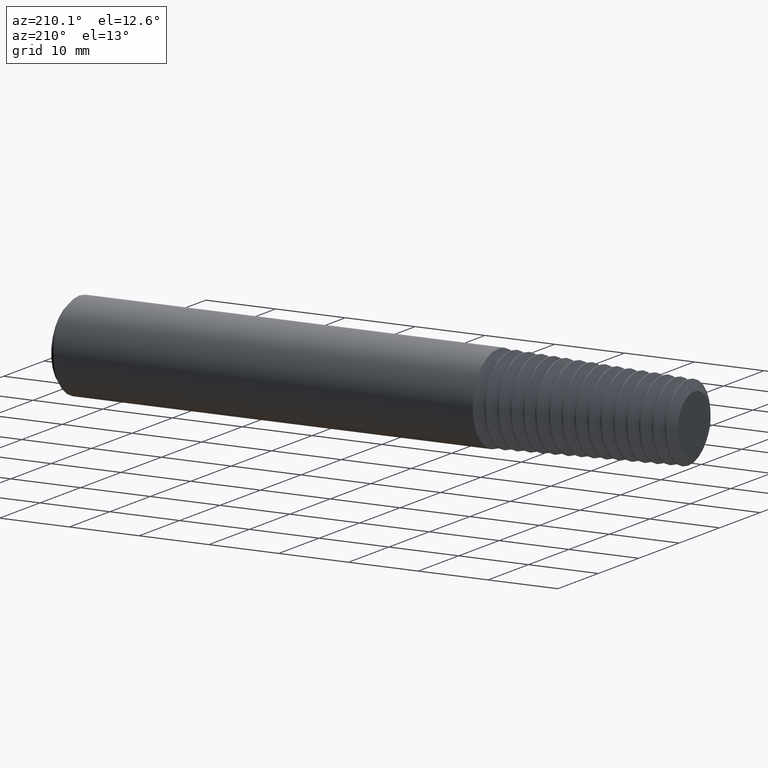
[diagram: clean part render]
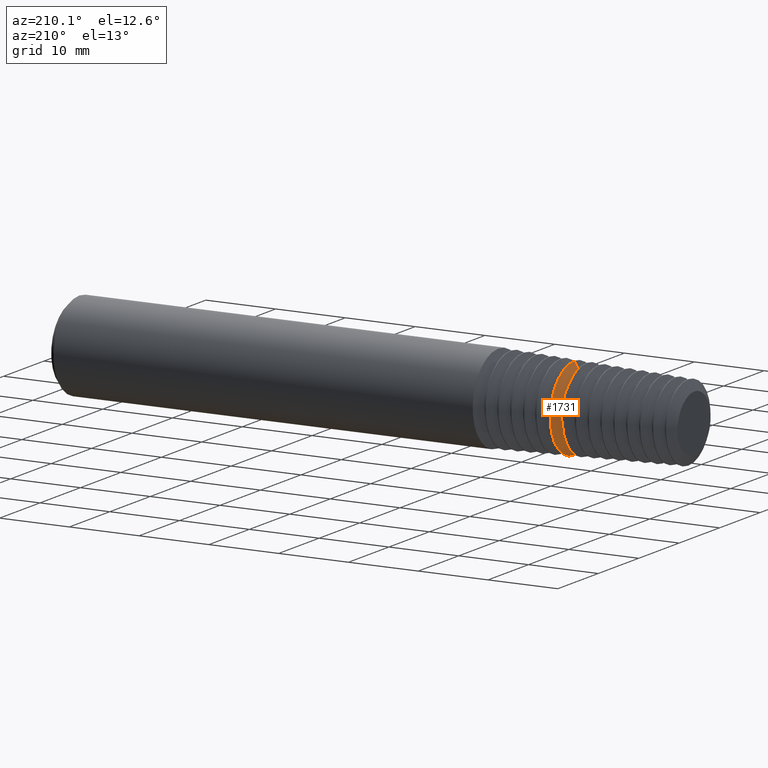
[diagram: same view with one face highlighted and labeled with its STEP entity id]
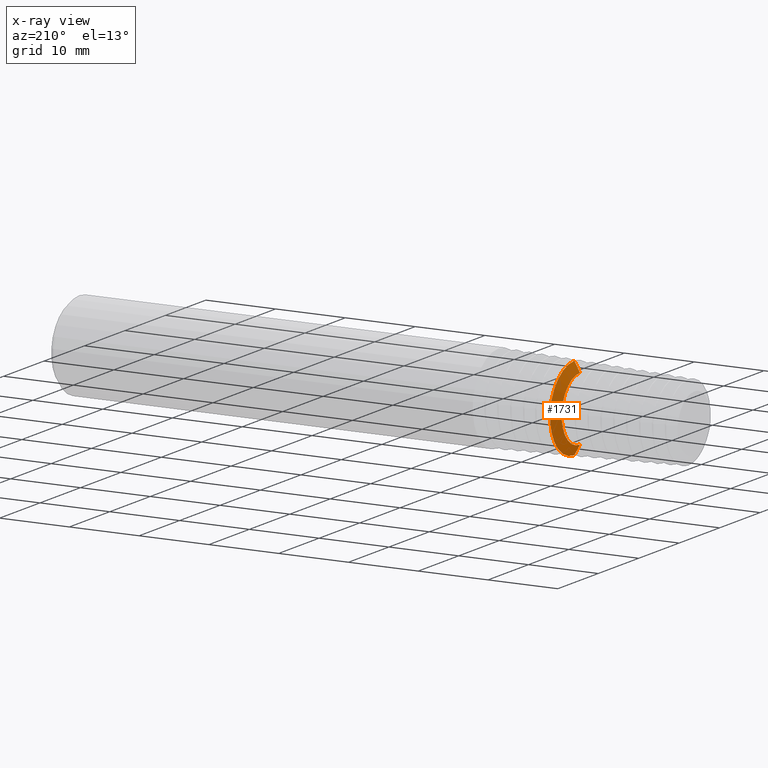
[diagram: x-ray of the same camera — body ghosted, the highlighted face saturated]
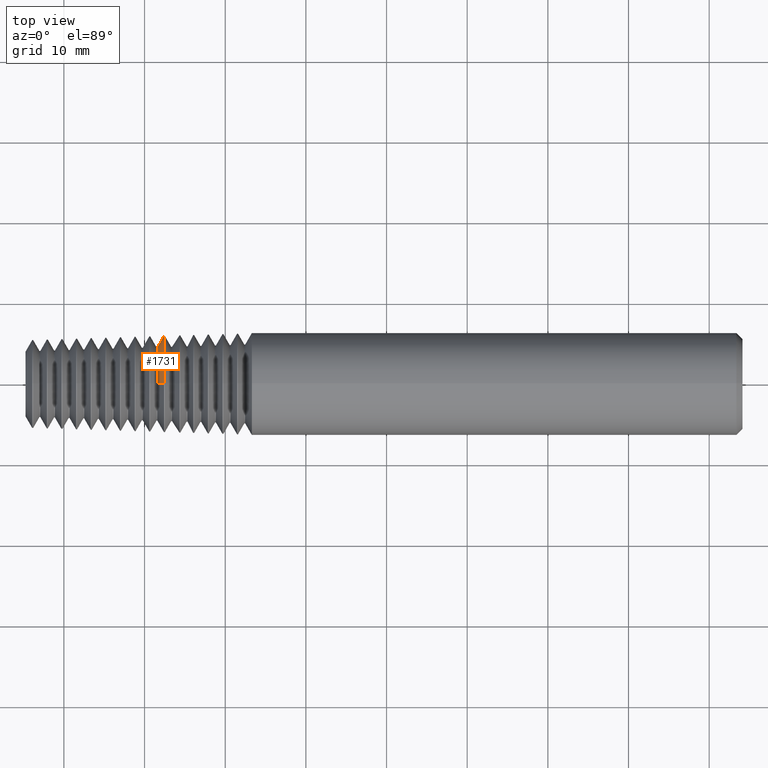
[diagram: same view with one face highlighted and labeled with its STEP entity id]
A machine part, auxiliary view. The second image highlights one B-rep face of the part: STEP entity #1731.
The next image is the same camera in x-ray: the body ghosted, the highlighted face saturated — about 0% of this face is hidden behind the body in this view.
A second angle (top view) of the same face is appended — the face is thin or edge-on in the first view.
In plain terms, the highlighted conical surface has half-angle 60.315 deg.
Its self-contained STEP definition (entity closure, byte-faithful):
#14 = AXIS2_PLACEMENT_3D ( 'NONE', #408, #3212, #2192 ) ;
#28 = VERTEX_POINT ( 'NONE', #2260 ) ;
#203 = DIRECTION ( 'NONE',  ( 1.000000000000000000, -0.0000000000000000000, -0.0000000000000000000 ) ) ;
#221 = CARTESIAN_POINT ( 'NONE',  ( -0.3311428569645775699, 0.0000000000000000000, -0.1798110205688664143 ) ) ;
#258 = EDGE_CURVE ( 'NONE', #1327, #1452, #3222, .T. ) ;
#385 = CARTESIAN_POINT ( 'NONE',  ( -0.2990291871730790807, 0.0000000000000000000, -0.2361461844135401278 ) ) ;
#395 = DIRECTION ( 'NONE',  ( 0.4952336138801939347, 0.0000000000000000000, -0.8687598446539543939 ) ) ;
#408 = CARTESIAN_POINT ( 'NONE',  ( -0.2990291871730790807, 0.0000000000000000000, 0.0000000000000000000 ) ) ;
#430 = AXIS2_PLACEMENT_3D ( 'NONE', #639, #1611, #1141 ) ;
#639 = CARTESIAN_POINT ( 'NONE',  ( -0.2990291871730790807, 0.0000000000000000000, 0.0000000000000000000 ) ) ;
#657 = EDGE_CURVE ( 'NONE', #2027, #28, #990, .T. ) ;
#687 = CARTESIAN_POINT ( 'NONE',  ( -0.3311428569645775699, 2.202049907910811457E-17, 0.1798110205688664143 ) ) ;
#769 = CARTESIAN_POINT ( 'NONE',  ( -0.2990291871730790807, 2.891956688729025066E-17, 0.2361461844135401278 ) ) ;
#822 = ORIENTED_EDGE ( 'NONE', *, *, #2146, .F. ) ;
#837 = ORIENTED_EDGE ( 'NONE', *, *, #258, .T. ) ;
#906 = LINE ( 'NONE', #769, #1502 ) ;
#956 = EDGE_CURVE ( 'NONE', #1452, #28, #906, .T. ) ;
#990 = CIRCLE ( 'NONE', #430, 0.2361461844135401278 ) ;
#1141 = DIRECTION ( 'NONE',  ( 0.0000000000000000000, 0.0000000000000000000, -1.000000000000000000 ) ) ;
#1296 = AXIS2_PLACEMENT_3D ( 'NONE', #3279, #203, #2233 ) ;
#1327 = VERTEX_POINT ( 'NONE', #221 ) ;
#1399 = CONICAL_SURFACE ( 'NONE', #14, 0.2361461844135401278, 1.052692610749820901 ) ;
#1431 = ORIENTED_EDGE ( 'NONE', *, *, #657, .F. ) ;
#1452 = VERTEX_POINT ( 'NONE', #687 ) ;
#1502 = VECTOR ( 'NONE', #3070, 39.37007874015748143 ) ;
#1518 = LINE ( 'NONE', #2693, #2049 ) ;
#1611 = DIRECTION ( 'NONE',  ( 1.000000000000000000, -0.0000000000000000000, -0.0000000000000000000 ) ) ;
#1731 = ADVANCED_FACE ( 'NONE', ( #2761 ), #1399, .T. ) ;
#2027 = VERTEX_POINT ( 'NONE', #385 ) ;
#2049 = VECTOR ( 'NONE', #395, 39.37007874015748143 ) ;
#2146 = EDGE_CURVE ( 'NONE', #1327, #2027, #1518, .T. ) ;
#2192 = DIRECTION ( 'NONE',  ( 0.0000000000000000000, 0.0000000000000000000, -1.000000000000000000 ) ) ;
#2233 = DIRECTION ( 'NONE',  ( 0.0000000000000000000, 0.0000000000000000000, -1.000000000000000000 ) ) ;
#2260 = CARTESIAN_POINT ( 'NONE',  ( -0.2990291871730790807, 2.891956688729025066E-17, 0.2361461844135401278 ) ) ;
#2693 = CARTESIAN_POINT ( 'NONE',  ( -0.2990291871730790807, 0.0000000000000000000, -0.2361461844135401278 ) ) ;
#2761 = FACE_OUTER_BOUND ( 'NONE', #3278, .T. ) ;
#3070 = DIRECTION ( 'NONE',  ( 0.4952336138801939347, 1.063923962983217134E-16, 0.8687598446539543939 ) ) ;
#3123 = ORIENTED_EDGE ( 'NONE', *, *, #956, .T. ) ;
#3212 = DIRECTION ( 'NONE',  ( 1.000000000000000000, -0.0000000000000000000, -0.0000000000000000000 ) ) ;
#3222 = CIRCLE ( 'NONE', #1296, 0.1798110205688664143 ) ;
#3278 = EDGE_LOOP ( 'NONE', ( #837, #3123, #1431, #822 ) ) ;
#3279 = CARTESIAN_POINT ( 'NONE',  ( -0.3311428569645775699, 0.0000000000000000000, 0.0000000000000000000 ) ) ;